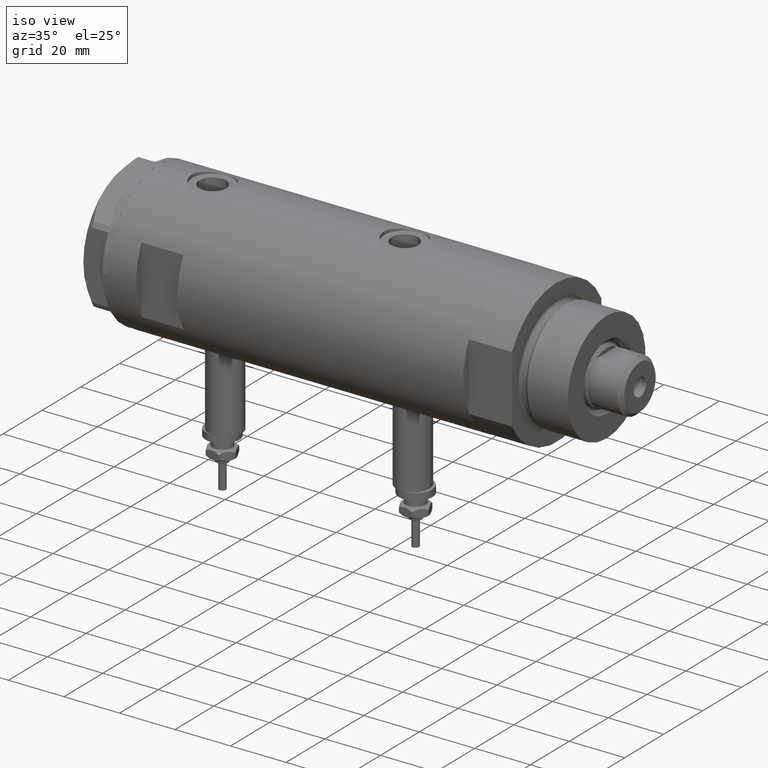
[diagram: clean part render]
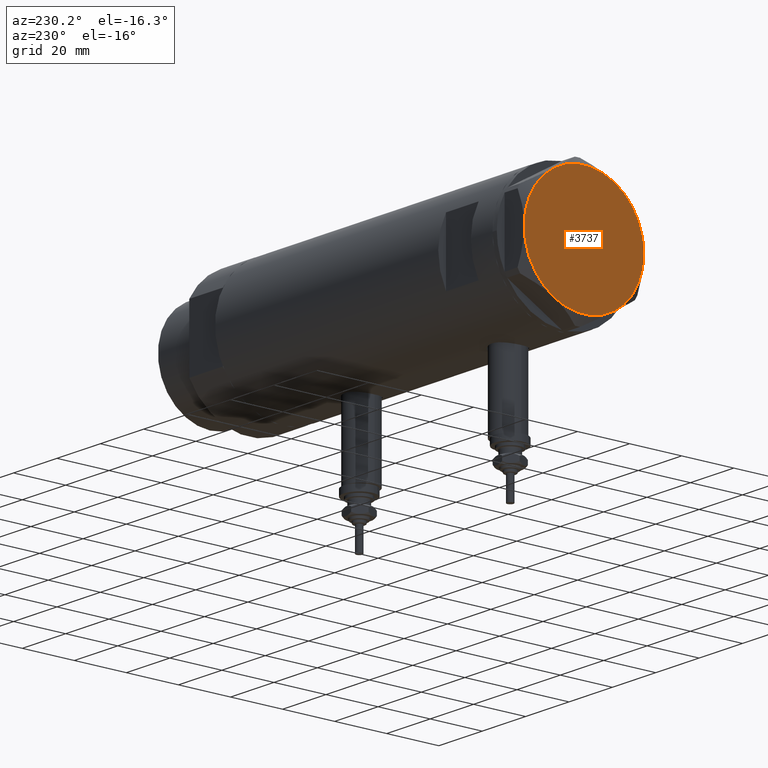
[diagram: tour spotlight — one face highlighted and labeled with its STEP entity id]
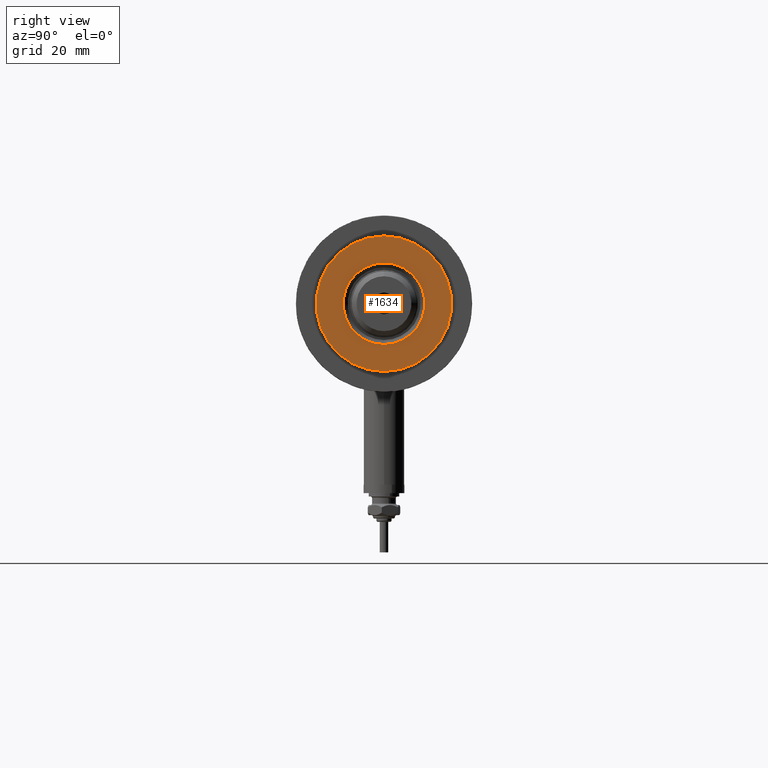
[diagram: tour spotlight — one face highlighted and labeled with its STEP entity id]
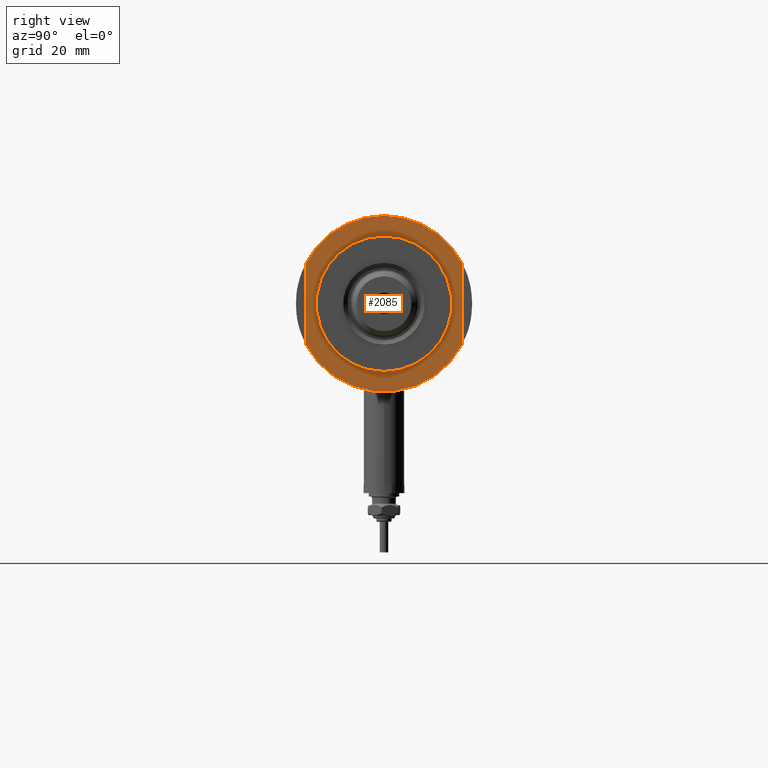
[diagram: tour spotlight — one face highlighted and labeled with its STEP entity id]
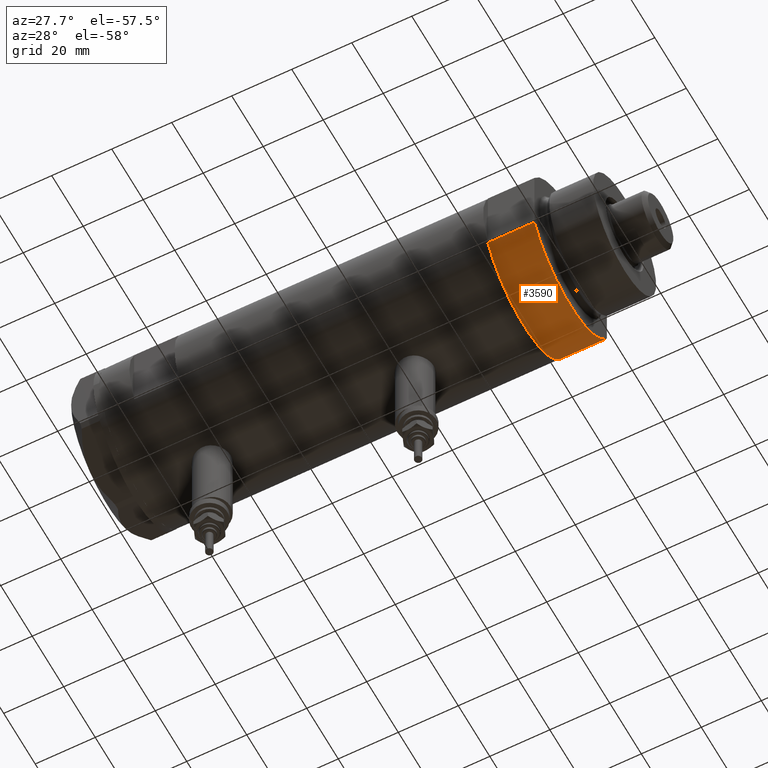
[diagram: tour spotlight — one face highlighted and labeled with its STEP entity id]
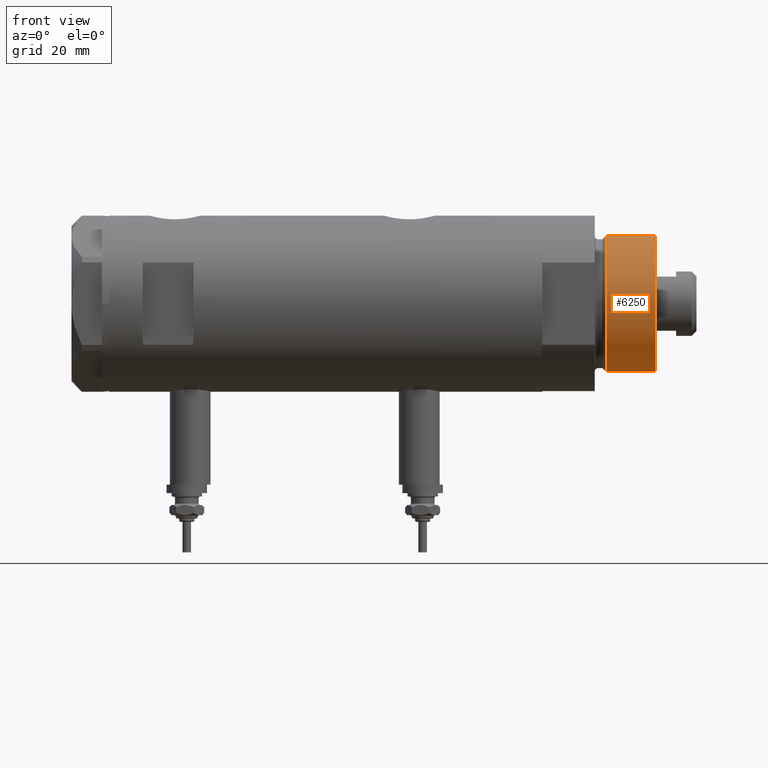
[diagram: tour spotlight — one face highlighted and labeled with its STEP entity id]
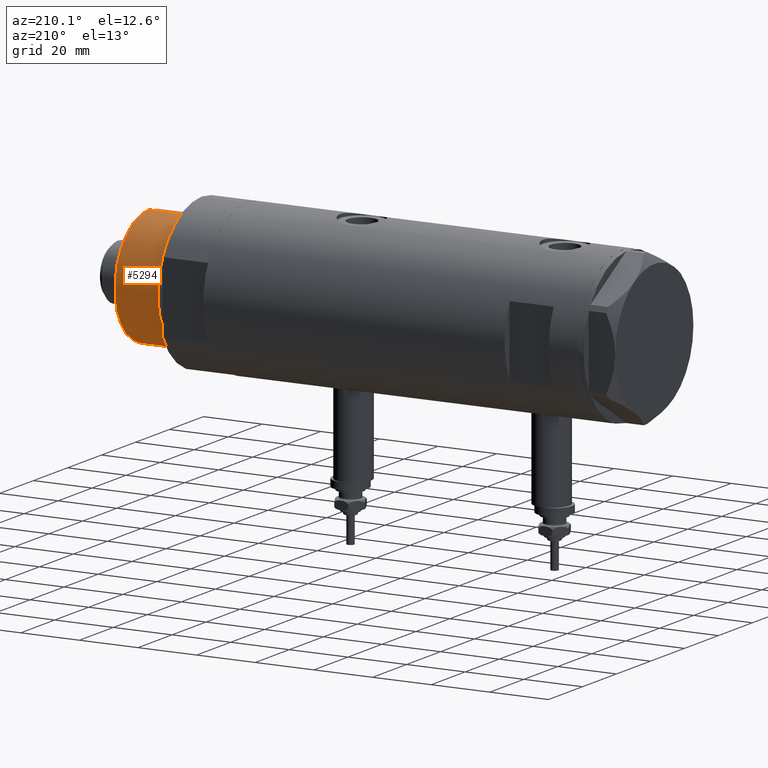
[diagram: tour spotlight — one face highlighted and labeled with its STEP entity id]
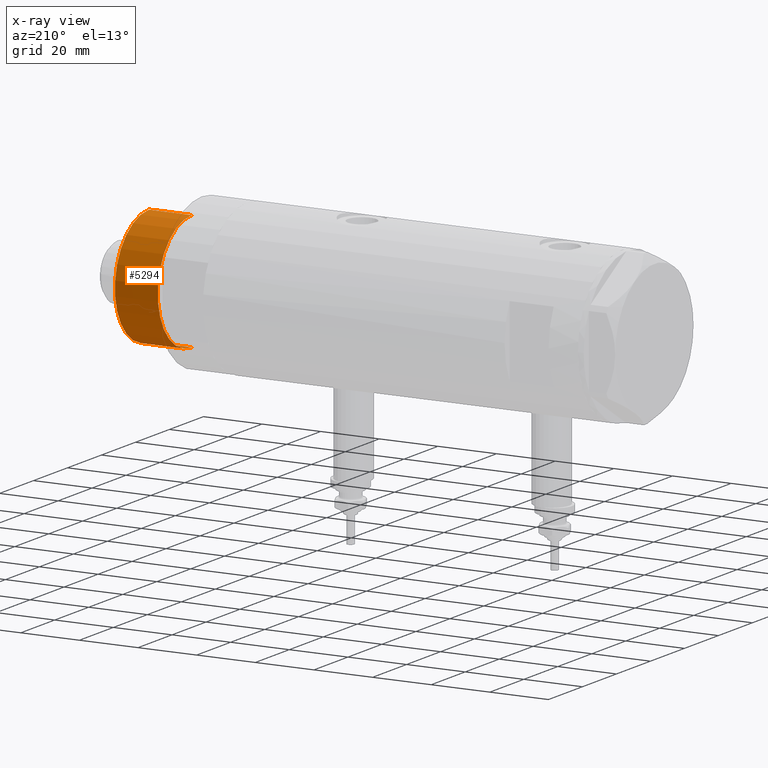
[diagram: x-ray of the same camera — body ghosted, this tour face saturated]
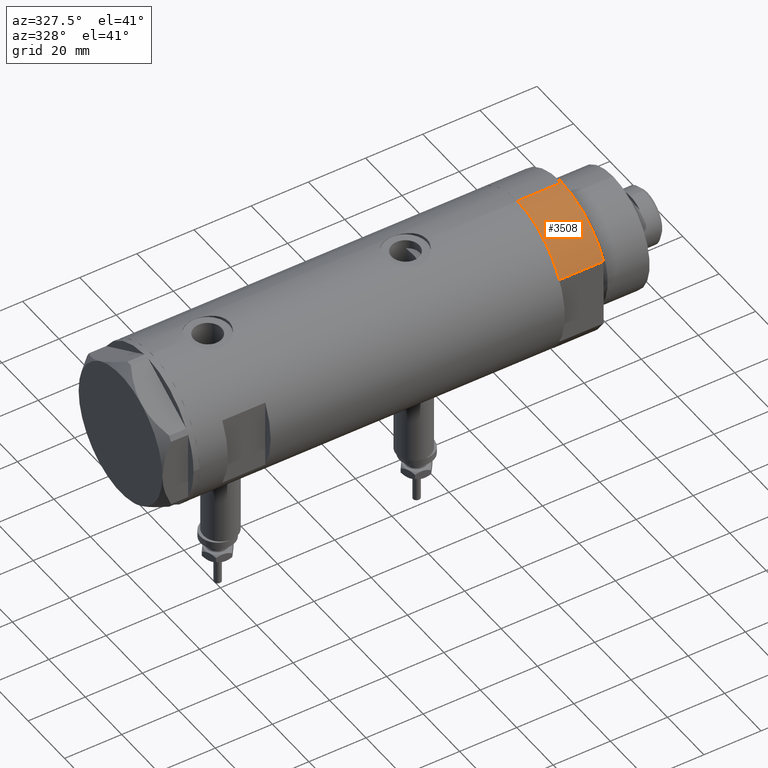
[diagram: tour spotlight — one face highlighted and labeled with its STEP entity id]
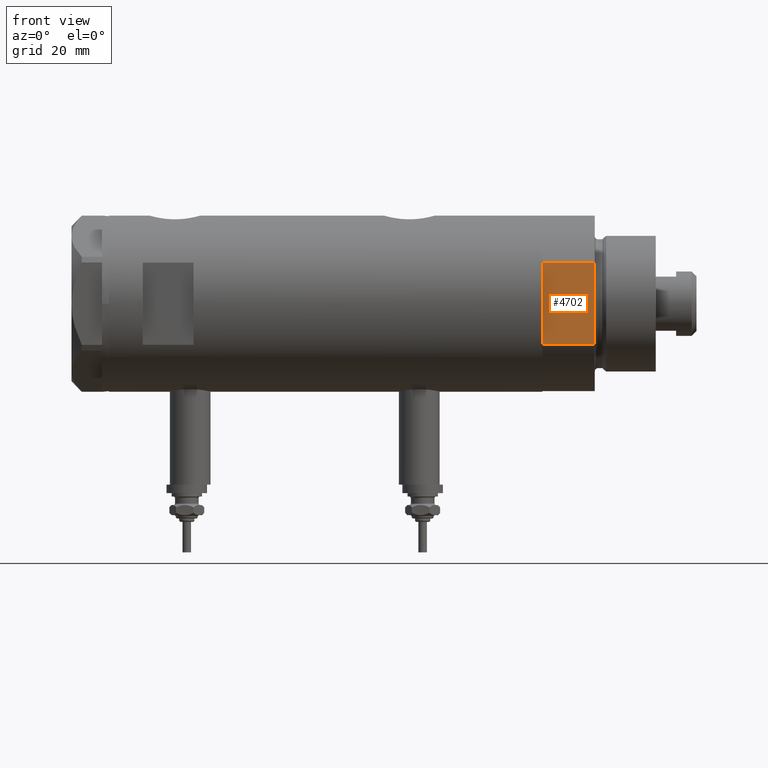
[diagram: tour spotlight — one face highlighted and labeled with its STEP entity id]
A machine part: a face-by-face anatomy tour. The part has 226 B-rep faces; the first image is the clean iso view, then the 8 largest visible faces are spotlighted one at a time (largest first), each with its STEP entity span.

Face 1 — auxiliary view, entity #3737. In plain terms, the highlighted planar face has unit normal (-1, -0, 0).
Definition (entity closure, byte-faithful):
#222 = CIRCLE ( 'NONE', #2054, 23.00000000000004619 ) ;
#390 = ORIENTED_EDGE ( 'NONE', *, *, #2309, .T. ) ;
#446 = EDGE_CURVE ( 'NONE', #5275, #2289, #4391, .T. ) ;
#603 = DIRECTION ( 'NONE',  ( 0.000000000000000000, 0.000000000000000000, 1.000000000000000000 ) ) ;
#783 = DIRECTION ( 'NONE',  ( 1.000000000000000000, 0.000000000000000000, -0.000000000000000000 ) ) ;
#932 = DIRECTION ( 'NONE',  ( 1.000000000000000000, 0.000000000000000000, 0.000000000000000000 ) ) ;
#1105 = VERTEX_POINT ( 'NONE', #1119 ) ;
#1119 = CARTESIAN_POINT ( 'NONE',  ( -11.50000000000004441, 19.91858428704211548, 9.000000000000000000 ) ) ;
#1132 = CIRCLE ( 'NONE', #5524, 23.00000000000004619 ) ;
#1203 = EDGE_LOOP ( 'NONE', ( #3985, #5233, #3791, #4630, #4785, #390 ) ) ;
#1246 = CARTESIAN_POINT ( 'NONE',  ( 22.99999999999995026, 2.373657066004705010E-13, 9.000000000000000000 ) ) ;
#1256 = FACE_OUTER_BOUND ( 'NONE', #1203, .T. ) ;
#1569 = CARTESIAN_POINT ( 'NONE',  ( -23.00000000000004619, -8.112498833180673323E-14, 9.000000000000000000 ) ) ;
#1622 = DIRECTION ( 'NONE',  ( 0.000000000000000000, 0.000000000000000000, 1.000000000000000000 ) ) ;
#1802 = PLANE ( 'NONE',  #5437 ) ;
#2054 = AXIS2_PLACEMENT_3D ( 'NONE', #5175, #5202, #4794 ) ;
#2077 = DIRECTION ( 'NONE',  ( 1.000000000000000000, 0.000000000000000000, 0.000000000000000000 ) ) ;
#2133 = DIRECTION ( 'NONE',  ( 1.000000000000000000, 0.000000000000000000, 0.000000000000000000 ) ) ;
#2157 = VERTEX_POINT ( 'NONE', #1569 ) ;
#2289 = VERTEX_POINT ( 'NONE', #1246 ) ;
#2309 = EDGE_CURVE ( 'NONE', #2931, #5275, #1132, .T. ) ;
#2340 = CARTESIAN_POINT ( 'NONE',  ( 0.000000000000000000, 0.000000000000000000, 9.000000000000000000 ) ) ;
#2500 = CIRCLE ( 'NONE', #6081, 23.00000000000004619 ) ;
#2762 = VERTEX_POINT ( 'NONE', #5245 ) ;
#2813 = DIRECTION ( 'NONE',  ( 1.000000000000000000, 0.000000000000000000, 0.000000000000000000 ) ) ;
#2843 = EDGE_CURVE ( 'NONE', #2762, #1105, #4420, .T. ) ;
#2849 = AXIS2_PLACEMENT_3D ( 'NONE', #4608, #1622, #2133 ) ;
#2928 = DIRECTION ( 'NONE',  ( 0.000000000000000000, 0.000000000000000000, 1.000000000000000000 ) ) ;
#2931 = VERTEX_POINT ( 'NONE', #2952 ) ;
#2952 = CARTESIAN_POINT ( 'NONE',  ( -11.49999999999990585, -19.91858428704219364, 9.000000000000000000 ) ) ;
#3213 = CARTESIAN_POINT ( 'NONE',  ( 0.000000000000000000, 0.000000000000000000, 9.000000000000000000 ) ) ;
#3215 = AXIS2_PLACEMENT_3D ( 'NONE', #6237, #2928, #2813 ) ;
#3286 = DIRECTION ( 'NONE',  ( 0.000000000000000000, 0.000000000000000000, 1.000000000000000000 ) ) ;
#3303 = EDGE_CURVE ( 'NONE', #1105, #2157, #222, .T. ) ;
#3698 = AXIS2_PLACEMENT_3D ( 'NONE', #5663, #3286, #5273 ) ;
#3737 = ADVANCED_FACE ( 'NONE', ( #1256 ), #1802, .T. ) ;
#3787 = DIRECTION ( 'NONE',  ( 0.000000000000000000, 0.000000000000000000, 1.000000000000000000 ) ) ;
#3791 = ORIENTED_EDGE ( 'NONE', *, *, #2843, .T. ) ;
#3820 = DIRECTION ( 'NONE',  ( 0.000000000000000000, 0.000000000000000000, 1.000000000000000000 ) ) ;
#3985 = ORIENTED_EDGE ( 'NONE', *, *, #446, .T. ) ;
#4391 = CIRCLE ( 'NONE', #2849, 23.00000000000004619 ) ;
#4420 = CIRCLE ( 'NONE', #3698, 23.00000000000004619 ) ;
#4608 = CARTESIAN_POINT ( 'NONE',  ( 0.000000000000000000, 0.000000000000000000, 9.000000000000000000 ) ) ;
#4630 = ORIENTED_EDGE ( 'NONE', *, *, #3303, .T. ) ;
#4785 = ORIENTED_EDGE ( 'NONE', *, *, #5811, .T. ) ;
#4794 = DIRECTION ( 'NONE',  ( 1.000000000000000000, 0.000000000000000000, 0.000000000000000000 ) ) ;
#5014 = CARTESIAN_POINT ( 'NONE',  ( 11.50000000000018296, -19.91858428704203732, 9.000000000000000000 ) ) ;
#5175 = CARTESIAN_POINT ( 'NONE',  ( 0.000000000000000000, 0.000000000000000000, 9.000000000000000000 ) ) ;
#5202 = DIRECTION ( 'NONE',  ( 0.000000000000000000, 0.000000000000000000, 1.000000000000000000 ) ) ;
#5233 = ORIENTED_EDGE ( 'NONE', *, *, #6239, .T. ) ;
#5245 = CARTESIAN_POINT ( 'NONE',  ( 11.49999999999990408, 19.91858428704219364, 9.000000000000000000 ) ) ;
#5273 = DIRECTION ( 'NONE',  ( 1.000000000000000000, 0.000000000000000000, 0.000000000000000000 ) ) ;
#5275 = VERTEX_POINT ( 'NONE', #5014 ) ;
#5437 = AXIS2_PLACEMENT_3D ( 'NONE', #3213, #3787, #783 ) ;
#5524 = AXIS2_PLACEMENT_3D ( 'NONE', #6053, #603, #2077 ) ;
#5663 = CARTESIAN_POINT ( 'NONE',  ( 0.000000000000000000, 0.000000000000000000, 9.000000000000000000 ) ) ;
#5811 = EDGE_CURVE ( 'NONE', #2157, #2931, #2500, .T. ) ;
#5979 = CIRCLE ( 'NONE', #3215, 23.00000000000004619 ) ;
#6053 = CARTESIAN_POINT ( 'NONE',  ( 0.000000000000000000, 0.000000000000000000, 9.000000000000000000 ) ) ;
#6081 = AXIS2_PLACEMENT_3D ( 'NONE', #2340, #3820, #932 ) ;
#6237 = CARTESIAN_POINT ( 'NONE',  ( 0.000000000000000000, 0.000000000000000000, 9.000000000000000000 ) ) ;
#6239 = EDGE_CURVE ( 'NONE', #2289, #2762, #5979, .T. ) ;

Face 2 — right view, entity #1634. In plain terms, the highlighted planar face has unit normal (1, 0, -0).
Definition (entity closure, byte-faithful):
#196 = CARTESIAN_POINT ( 'NONE',  ( 0.000000000000000000, 0.000000000000000000, 33.50000000000000000 ) ) ;
#232 = AXIS2_PLACEMENT_3D ( 'NONE', #3947, #4905, #1416 ) ;
#305 = EDGE_CURVE ( 'NONE', #5201, #4993, #1842, .T. ) ;
#357 = CARTESIAN_POINT ( 'NONE',  ( 0.000000000000000000, 0.000000000000000000, 33.50000000000000000 ) ) ;
#539 = DIRECTION ( 'NONE',  ( 0.000000000000000000, 0.000000000000000000, 1.000000000000000000 ) ) ;
#754 = EDGE_CURVE ( 'NONE', #4993, #5201, #5306, .T. ) ;
#1001 = DIRECTION ( 'NONE',  ( 1.000000000000000000, 0.000000000000000000, 0.000000000000000000 ) ) ;
#1116 = AXIS2_PLACEMENT_3D ( 'NONE', #196, #5582, #3986 ) ;
#1378 = VERTEX_POINT ( 'NONE', #3453 ) ;
#1416 = DIRECTION ( 'NONE',  ( 1.000000000000000000, 0.000000000000000000, 0.000000000000000000 ) ) ;
#1474 = FACE_OUTER_BOUND ( 'NONE', #3219, .T. ) ;
#1479 = ORIENTED_EDGE ( 'NONE', *, *, #3858, .T. ) ;
#1526 = CARTESIAN_POINT ( 'NONE',  ( 19.99999999999999645, 2.449293598294706119E-15, 33.50000000000000000 ) ) ;
#1634 = ADVANCED_FACE ( 'NONE', ( #2904, #1474 ), #3419, .T. ) ;
#1842 = CIRCLE ( 'NONE', #2354, 19.99999999999999645 ) ;
#1860 = CIRCLE ( 'NONE', #5751, 12.05000000000000426 ) ;
#1992 = CARTESIAN_POINT ( 'NONE',  ( 0.000000000000000000, 0.000000000000000000, 33.50000000000000000 ) ) ;
#2147 = AXIS2_PLACEMENT_3D ( 'NONE', #357, #539, #4546 ) ;
#2354 = AXIS2_PLACEMENT_3D ( 'NONE', #5665, #2776, #2677 ) ;
#2677 = DIRECTION ( 'NONE',  ( 1.000000000000000000, 0.000000000000000000, 0.000000000000000000 ) ) ;
#2722 = ORIENTED_EDGE ( 'NONE', *, *, #754, .T. ) ;
#2776 = DIRECTION ( 'NONE',  ( 0.000000000000000000, 0.000000000000000000, 1.000000000000000000 ) ) ;
#2836 = ORIENTED_EDGE ( 'NONE', *, *, #3414, .T. ) ;
#2882 = CIRCLE ( 'NONE', #232, 12.05000000000000426 ) ;
#2904 = FACE_BOUND ( 'NONE', #5928, .T. ) ;
#3219 = EDGE_LOOP ( 'NONE', ( #2722, #4550 ) ) ;
#3232 = CARTESIAN_POINT ( 'NONE',  ( -19.99999999999999645, 0.000000000000000000, 33.50000000000000000 ) ) ;
#3414 = EDGE_CURVE ( 'NONE', #1378, #3464, #1860, .T. ) ;
#3419 = PLANE ( 'NONE',  #2147 ) ;
#3453 = CARTESIAN_POINT ( 'NONE',  ( -12.05000000000000426, 1.475699392972560823E-15, 33.50000000000000000 ) ) ;
#3464 = VERTEX_POINT ( 'NONE', #5931 ) ;
#3858 = EDGE_CURVE ( 'NONE', #3464, #1378, #2882, .T. ) ;
#3947 = CARTESIAN_POINT ( 'NONE',  ( 0.000000000000000000, 0.000000000000000000, 33.50000000000000000 ) ) ;
#3986 = DIRECTION ( 'NONE',  ( 1.000000000000000000, 0.000000000000000000, 0.000000000000000000 ) ) ;
#4546 = DIRECTION ( 'NONE',  ( 1.000000000000000000, 0.000000000000000000, -0.000000000000000000 ) ) ;
#4550 = ORIENTED_EDGE ( 'NONE', *, *, #305, .T. ) ;
#4905 = DIRECTION ( 'NONE',  ( -0.000000000000000000, -0.000000000000000000, -1.000000000000000000 ) ) ;
#4993 = VERTEX_POINT ( 'NONE', #3232 ) ;
#5201 = VERTEX_POINT ( 'NONE', #1526 ) ;
#5306 = CIRCLE ( 'NONE', #1116, 19.99999999999999645 ) ;
#5382 = DIRECTION ( 'NONE',  ( -0.000000000000000000, -0.000000000000000000, -1.000000000000000000 ) ) ;
#5582 = DIRECTION ( 'NONE',  ( 0.000000000000000000, 0.000000000000000000, 1.000000000000000000 ) ) ;
#5665 = CARTESIAN_POINT ( 'NONE',  ( 0.000000000000000000, 0.000000000000000000, 33.50000000000000000 ) ) ;
#5751 = AXIS2_PLACEMENT_3D ( 'NONE', #1992, #5382, #1001 ) ;
#5928 = EDGE_LOOP ( 'NONE', ( #1479, #2836 ) ) ;
#5931 = CARTESIAN_POINT ( 'NONE',  ( 12.05000000000000426, 0.000000000000000000, 33.50000000000000000 ) ) ;

Face 3 — right view, entity #2085. In plain terms, the highlighted planar face has unit normal (1, 0, -0).
Definition (entity closure, byte-faithful):
#73 = CARTESIAN_POINT ( 'NONE',  ( 0.000000000000000000, 0.000000000000000000, 15.50000000000000000 ) ) ;
#83 = LINE ( 'NONE', #1141, #5347 ) ;
#114 = DIRECTION ( 'NONE',  ( 0.000000000000000000, 0.000000000000000000, 1.000000000000000000 ) ) ;
#186 = ORIENTED_EDGE ( 'NONE', *, *, #4380, .T. ) ;
#404 = EDGE_CURVE ( 'NONE', #1064, #2700, #708, .T. ) ;
#467 = DIRECTION ( 'NONE',  ( 1.000000000000000000, 0.000000000000000000, 0.000000000000000000 ) ) ;
#479 = VERTEX_POINT ( 'NONE', #2673 ) ;
#547 = AXIS2_PLACEMENT_3D ( 'NONE', #73, #2889, #467 ) ;
#688 = FACE_BOUND ( 'NONE', #2986, .T. ) ;
#708 = CIRCLE ( 'NONE', #1628, 20.00000000000000000 ) ;
#866 = CARTESIAN_POINT ( 'NONE',  ( -12.12435565298214613, 23.00000000000000355, 15.50000000000000000 ) ) ;
#936 = DIRECTION ( 'NONE',  ( 1.000000000000000000, 0.000000000000000000, 0.000000000000000000 ) ) ;
#1064 = VERTEX_POINT ( 'NONE', #2911 ) ;
#1141 = CARTESIAN_POINT ( 'NONE',  ( -12.12435565298215145, -22.99999999999999645, 15.50000000000000000 ) ) ;
#1178 = CARTESIAN_POINT ( 'NONE',  ( 12.12435565298214790, 23.00000000000000355, 15.50000000000000000 ) ) ;
#1201 = DIRECTION ( 'NONE',  ( 0.000000000000000000, 0.000000000000000000, 1.000000000000000000 ) ) ;
#1505 = EDGE_CURVE ( 'NONE', #2700, #1064, #2957, .T. ) ;
#1559 = DIRECTION ( 'NONE',  ( 1.000000000000000000, 0.000000000000000000, 0.000000000000000000 ) ) ;
#1605 = EDGE_LOOP ( 'NONE', ( #4900, #6195, #2024, #2905, #186 ) ) ;
#1628 = AXIS2_PLACEMENT_3D ( 'NONE', #1652, #2200, #3610 ) ;
#1652 = CARTESIAN_POINT ( 'NONE',  ( 0.000000000000000000, 0.000000000000000000, 15.50000000000000000 ) ) ;
#1755 = EDGE_CURVE ( 'NONE', #6216, #479, #6242, .T. ) ;
#1824 = CARTESIAN_POINT ( 'NONE',  ( 0.000000000000000000, 0.000000000000000000, 15.50000000000000000 ) ) ;
#1977 = DIRECTION ( 'NONE',  ( 1.000000000000000000, 0.000000000000000000, 0.000000000000000000 ) ) ;
#2024 = ORIENTED_EDGE ( 'NONE', *, *, #3890, .F. ) ;
#2031 = DIRECTION ( 'NONE',  ( -1.000000000000000000, -0.000000000000000000, -0.000000000000000000 ) ) ;
#2085 = ADVANCED_FACE ( 'NONE', ( #688, #4599 ), #3637, .T. ) ;
#2200 = DIRECTION ( 'NONE',  ( -0.000000000000000000, -0.000000000000000000, -1.000000000000000000 ) ) ;
#2283 = CIRCLE ( 'NONE', #5556, 26.00000000000000355 ) ;
#2673 = CARTESIAN_POINT ( 'NONE',  ( -26.00000000000000355, 0.000000000000000000, 15.50000000000000000 ) ) ;
#2675 = CARTESIAN_POINT ( 'NONE',  ( 20.00000000000000000, 0.000000000000000000, 15.50000000000000000 ) ) ;
#2700 = VERTEX_POINT ( 'NONE', #2675 ) ;
#2889 = DIRECTION ( 'NONE',  ( 0.000000000000000000, 0.000000000000000000, 1.000000000000000000 ) ) ;
#2905 = ORIENTED_EDGE ( 'NONE', *, *, #1755, .T. ) ;
#2911 = CARTESIAN_POINT ( 'NONE',  ( -20.00000000000000000, 2.449293598294706513E-15, 15.50000000000000000 ) ) ;
#2957 = CIRCLE ( 'NONE', #4202, 20.00000000000000000 ) ;
#2986 = EDGE_LOOP ( 'NONE', ( #3287, #5619 ) ) ;
#3147 = DIRECTION ( 'NONE',  ( 1.000000000000000000, 0.000000000000000000, -0.000000000000000000 ) ) ;
#3287 = ORIENTED_EDGE ( 'NONE', *, *, #1505, .T. ) ;
#3327 = DIRECTION ( 'NONE',  ( 1.000000000000000000, 0.000000000000000000, 0.000000000000000000 ) ) ;
#3610 = DIRECTION ( 'NONE',  ( 1.000000000000000000, 0.000000000000000000, 0.000000000000000000 ) ) ;
#3637 = PLANE ( 'NONE',  #5225 ) ;
#3890 = EDGE_CURVE ( 'NONE', #6216, #5314, #5407, .T. ) ;
#4179 = VERTEX_POINT ( 'NONE', #4461 ) ;
#4202 = AXIS2_PLACEMENT_3D ( 'NONE', #1824, #5766, #3327 ) ;
#4300 = AXIS2_PLACEMENT_3D ( 'NONE', #5468, #4988, #1977 ) ;
#4380 = EDGE_CURVE ( 'NONE', #479, #6162, #2283, .T. ) ;
#4461 = CARTESIAN_POINT ( 'NONE',  ( 12.12435565298215323, -22.99999999999999645, 15.50000000000000000 ) ) ;
#4599 = FACE_OUTER_BOUND ( 'NONE', #1605, .T. ) ;
#4833 = EDGE_CURVE ( 'NONE', #4179, #5314, #5342, .T. ) ;
#4900 = ORIENTED_EDGE ( 'NONE', *, *, #5259, .F. ) ;
#4988 = DIRECTION ( 'NONE',  ( 0.000000000000000000, 0.000000000000000000, 1.000000000000000000 ) ) ;
#5225 = AXIS2_PLACEMENT_3D ( 'NONE', #5588, #1201, #3147 ) ;
#5259 = EDGE_CURVE ( 'NONE', #4179, #6162, #83, .T. ) ;
#5314 = VERTEX_POINT ( 'NONE', #1178 ) ;
#5342 = CIRCLE ( 'NONE', #547, 26.00000000000000355 ) ;
#5347 = VECTOR ( 'NONE', #2031, 1000.000000000000000 ) ;
#5407 = LINE ( 'NONE', #5803, #5759 ) ;
#5468 = CARTESIAN_POINT ( 'NONE',  ( 0.000000000000000000, 0.000000000000000000, 15.50000000000000000 ) ) ;
#5556 = AXIS2_PLACEMENT_3D ( 'NONE', #5799, #114, #1559 ) ;
#5588 = CARTESIAN_POINT ( 'NONE',  ( 0.000000000000000000, 0.000000000000000000, 15.50000000000000000 ) ) ;
#5619 = ORIENTED_EDGE ( 'NONE', *, *, #404, .T. ) ;
#5671 = CARTESIAN_POINT ( 'NONE',  ( -12.12435565298215323, -22.99999999999999645, 15.50000000000000000 ) ) ;
#5759 = VECTOR ( 'NONE', #936, 1000.000000000000000 ) ;
#5766 = DIRECTION ( 'NONE',  ( -0.000000000000000000, -0.000000000000000000, -1.000000000000000000 ) ) ;
#5799 = CARTESIAN_POINT ( 'NONE',  ( 0.000000000000000000, 0.000000000000000000, 15.50000000000000000 ) ) ;
#5803 = CARTESIAN_POINT ( 'NONE',  ( -12.12435565298215145, 23.00000000000000355, 15.50000000000000000 ) ) ;
#6162 = VERTEX_POINT ( 'NONE', #5671 ) ;
#6195 = ORIENTED_EDGE ( 'NONE', *, *, #4833, .T. ) ;
#6216 = VERTEX_POINT ( 'NONE', #866 ) ;
#6242 = CIRCLE ( 'NONE', #4300, 26.00000000000000355 ) ;

Face 4 — auxiliary view, entity #3590. In plain terms, the highlighted cylindrical surface (partial cylindrical patch) has radius 26 mm, axis along (-1, -0, 0).
Definition (entity closure, byte-faithful):
#73 = CARTESIAN_POINT ( 'NONE',  ( 0.000000000000000000, 0.000000000000000000, 15.50000000000000000 ) ) ;
#415 = VERTEX_POINT ( 'NONE', #5112 ) ;
#467 = DIRECTION ( 'NONE',  ( 1.000000000000000000, 0.000000000000000000, 0.000000000000000000 ) ) ;
#547 = AXIS2_PLACEMENT_3D ( 'NONE', #73, #2889, #467 ) ;
#626 = ORIENTED_EDGE ( 'NONE', *, *, #3633, .T. ) ;
#636 = AXIS2_PLACEMENT_3D ( 'NONE', #2696, #5745, #3658 ) ;
#703 = CARTESIAN_POINT ( 'NONE',  ( 12.12435565298215323, -22.99999999999999645, 0.000000000000000000 ) ) ;
#921 = CARTESIAN_POINT ( 'NONE',  ( 0.000000000000000000, 0.000000000000000000, 0.000000000000000000 ) ) ;
#1178 = CARTESIAN_POINT ( 'NONE',  ( 12.12435565298214790, 23.00000000000000355, 15.50000000000000000 ) ) ;
#1311 = DIRECTION ( 'NONE',  ( 1.000000000000000000, 0.000000000000000000, 0.000000000000000000 ) ) ;
#1366 = EDGE_CURVE ( 'NONE', #2359, #4179, #4555, .T. ) ;
#1420 = CARTESIAN_POINT ( 'NONE',  ( 12.12435565298215323, -22.99999999999999645, 0.000000000000000000 ) ) ;
#1690 = ORIENTED_EDGE ( 'NONE', *, *, #5099, .T. ) ;
#2076 = CIRCLE ( 'NONE', #4131, 26.00000000000000355 ) ;
#2249 = FACE_OUTER_BOUND ( 'NONE', #3044, .T. ) ;
#2359 = VERTEX_POINT ( 'NONE', #703 ) ;
#2696 = CARTESIAN_POINT ( 'NONE',  ( 0.000000000000000000, 0.000000000000000000, 15.50000000000000000 ) ) ;
#2727 = LINE ( 'NONE', #6124, #5953 ) ;
#2889 = DIRECTION ( 'NONE',  ( 0.000000000000000000, 0.000000000000000000, 1.000000000000000000 ) ) ;
#3044 = EDGE_LOOP ( 'NONE', ( #6267, #4823, #1690, #626 ) ) ;
#3590 = ADVANCED_FACE ( 'NONE', ( #2249 ), #5133, .T. ) ;
#3633 = EDGE_CURVE ( 'NONE', #415, #5314, #2727, .T. ) ;
#3658 = DIRECTION ( 'NONE',  ( -1.000000000000000000, 0.000000000000000000, 0.000000000000000000 ) ) ;
#4131 = AXIS2_PLACEMENT_3D ( 'NONE', #921, #4835, #1311 ) ;
#4179 = VERTEX_POINT ( 'NONE', #4461 ) ;
#4461 = CARTESIAN_POINT ( 'NONE',  ( 12.12435565298215323, -22.99999999999999645, 15.50000000000000000 ) ) ;
#4555 = LINE ( 'NONE', #1420, #5413 ) ;
#4823 = ORIENTED_EDGE ( 'NONE', *, *, #1366, .F. ) ;
#4833 = EDGE_CURVE ( 'NONE', #4179, #5314, #5342, .T. ) ;
#4835 = DIRECTION ( 'NONE',  ( 0.000000000000000000, 0.000000000000000000, 1.000000000000000000 ) ) ;
#5099 = EDGE_CURVE ( 'NONE', #2359, #415, #2076, .T. ) ;
#5112 = CARTESIAN_POINT ( 'NONE',  ( 12.12435565298214080, 23.00000000000000355, 0.000000000000000000 ) ) ;
#5133 = CYLINDRICAL_SURFACE ( 'NONE', #636, 26.00000000000000355 ) ;
#5314 = VERTEX_POINT ( 'NONE', #1178 ) ;
#5342 = CIRCLE ( 'NONE', #547, 26.00000000000000355 ) ;
#5413 = VECTOR ( 'NONE', #5835, 1000.000000000000000 ) ;
#5745 = DIRECTION ( 'NONE',  ( -0.000000000000000000, -0.000000000000000000, -1.000000000000000000 ) ) ;
#5835 = DIRECTION ( 'NONE',  ( -0.000000000000000000, -0.000000000000000000, 1.000000000000000000 ) ) ;
#5953 = VECTOR ( 'NONE', #6096, 1000.000000000000000 ) ;
#6096 = DIRECTION ( 'NONE',  ( -0.000000000000000000, -0.000000000000000000, 1.000000000000000000 ) ) ;
#6124 = CARTESIAN_POINT ( 'NONE',  ( 12.12435565298215323, 23.00000000000000355, 0.000000000000000000 ) ) ;
#6267 = ORIENTED_EDGE ( 'NONE', *, *, #4833, .F. ) ;

Face 5 — front view, entity #6250. In plain terms, the highlighted cylindrical surface (partial cylindrical patch) has radius 20 mm, axis along (-1, -0, 0).
Definition (entity closure, byte-faithful):
#76 = VERTEX_POINT ( 'NONE', #1095 ) ;
#196 = CARTESIAN_POINT ( 'NONE',  ( 0.000000000000000000, 0.000000000000000000, 33.50000000000000000 ) ) ;
#353 = EDGE_CURVE ( 'NONE', #4037, #76, #2861, .T. ) ;
#366 = EDGE_CURVE ( 'NONE', #5201, #76, #4986, .T. ) ;
#699 = DIRECTION ( 'NONE',  ( -0.000000000000000000, -0.000000000000000000, 1.000000000000000000 ) ) ;
#754 = EDGE_CURVE ( 'NONE', #4993, #5201, #5306, .T. ) ;
#805 = ORIENTED_EDGE ( 'NONE', *, *, #754, .F. ) ;
#927 = AXIS2_PLACEMENT_3D ( 'NONE', #5085, #699, #4089 ) ;
#965 = CARTESIAN_POINT ( 'NONE',  ( -19.99999999999999645, 0.000000000000000000, 33.50000000000000000 ) ) ;
#1095 = CARTESIAN_POINT ( 'NONE',  ( 19.99999999999999645, 2.449293598294706119E-15, 18.87384048104053846 ) ) ;
#1116 = AXIS2_PLACEMENT_3D ( 'NONE', #196, #5582, #3986 ) ;
#1526 = CARTESIAN_POINT ( 'NONE',  ( 19.99999999999999645, 2.449293598294706119E-15, 33.50000000000000000 ) ) ;
#1610 = ORIENTED_EDGE ( 'NONE', *, *, #366, .F. ) ;
#1850 = FACE_OUTER_BOUND ( 'NONE', #2045, .T. ) ;
#1858 = DIRECTION ( 'NONE',  ( -0.000000000000000000, -0.000000000000000000, -1.000000000000000000 ) ) ;
#2016 = CARTESIAN_POINT ( 'NONE',  ( -19.99999999999999645, 0.000000000000000000, 18.87384048104053846 ) ) ;
#2045 = EDGE_LOOP ( 'NONE', ( #1610, #805, #2608, #2883 ) ) ;
#2086 = VECTOR ( 'NONE', #1858, 1000.000000000000000 ) ;
#2608 = ORIENTED_EDGE ( 'NONE', *, *, #5918, .T. ) ;
#2861 = CIRCLE ( 'NONE', #927, 19.99999999999999645 ) ;
#2883 = ORIENTED_EDGE ( 'NONE', *, *, #353, .T. ) ;
#3232 = CARTESIAN_POINT ( 'NONE',  ( -19.99999999999999645, 0.000000000000000000, 33.50000000000000000 ) ) ;
#3844 = CYLINDRICAL_SURFACE ( 'NONE', #6286, 19.99999999999999645 ) ;
#3903 = DIRECTION ( 'NONE',  ( -0.000000000000000000, -0.000000000000000000, -1.000000000000000000 ) ) ;
#3986 = DIRECTION ( 'NONE',  ( 1.000000000000000000, 0.000000000000000000, 0.000000000000000000 ) ) ;
#4037 = VERTEX_POINT ( 'NONE', #2016 ) ;
#4089 = DIRECTION ( 'NONE',  ( 1.000000000000000000, 0.000000000000000000, 0.000000000000000000 ) ) ;
#4509 = VECTOR ( 'NONE', #4642, 1000.000000000000000 ) ;
#4642 = DIRECTION ( 'NONE',  ( -0.000000000000000000, -0.000000000000000000, -1.000000000000000000 ) ) ;
#4986 = LINE ( 'NONE', #5526, #4509 ) ;
#4993 = VERTEX_POINT ( 'NONE', #3232 ) ;
#5085 = CARTESIAN_POINT ( 'NONE',  ( 0.000000000000000000, 0.000000000000000000, 18.87384048104053846 ) ) ;
#5201 = VERTEX_POINT ( 'NONE', #1526 ) ;
#5277 = CARTESIAN_POINT ( 'NONE',  ( 0.000000000000000000, 0.000000000000000000, 33.50000000000000000 ) ) ;
#5306 = CIRCLE ( 'NONE', #1116, 19.99999999999999645 ) ;
#5341 = LINE ( 'NONE', #965, #2086 ) ;
#5526 = CARTESIAN_POINT ( 'NONE',  ( 19.99999999999999645, 2.449293598294706119E-15, 33.50000000000000000 ) ) ;
#5582 = DIRECTION ( 'NONE',  ( 0.000000000000000000, 0.000000000000000000, 1.000000000000000000 ) ) ;
#5794 = DIRECTION ( 'NONE',  ( -1.000000000000000000, 0.000000000000000000, 0.000000000000000000 ) ) ;
#5918 = EDGE_CURVE ( 'NONE', #4993, #4037, #5341, .T. ) ;
#6250 = ADVANCED_FACE ( 'NONE', ( #1850 ), #3844, .T. ) ;
#6286 = AXIS2_PLACEMENT_3D ( 'NONE', #5277, #3903, #5794 ) ;

Face 6 — auxiliary view, entity #5294. An x-ray twin of the same camera follows (body ghosted, this face saturated) — the face is partly hidden behind the body. In plain terms, the highlighted cylindrical surface (partial cylindrical patch) has radius 20 mm, axis along (-1, -0, 0).
Definition (entity closure, byte-faithful):
#76 = VERTEX_POINT ( 'NONE', #1095 ) ;
#305 = EDGE_CURVE ( 'NONE', #5201, #4993, #1842, .T. ) ;
#366 = EDGE_CURVE ( 'NONE', #5201, #76, #4986, .T. ) ;
#965 = CARTESIAN_POINT ( 'NONE',  ( -19.99999999999999645, 0.000000000000000000, 33.50000000000000000 ) ) ;
#1095 = CARTESIAN_POINT ( 'NONE',  ( 19.99999999999999645, 2.449293598294706119E-15, 18.87384048104053846 ) ) ;
#1111 = DIRECTION ( 'NONE',  ( -0.000000000000000000, -0.000000000000000000, 1.000000000000000000 ) ) ;
#1526 = CARTESIAN_POINT ( 'NONE',  ( 19.99999999999999645, 2.449293598294706119E-15, 33.50000000000000000 ) ) ;
#1736 = EDGE_CURVE ( 'NONE', #76, #4037, #5633, .T. ) ;
#1841 = AXIS2_PLACEMENT_3D ( 'NONE', #2522, #1111, #3510 ) ;
#1842 = CIRCLE ( 'NONE', #2354, 19.99999999999999645 ) ;
#1858 = DIRECTION ( 'NONE',  ( -0.000000000000000000, -0.000000000000000000, -1.000000000000000000 ) ) ;
#1873 = AXIS2_PLACEMENT_3D ( 'NONE', #4413, #2197, #2260 ) ;
#1910 = ORIENTED_EDGE ( 'NONE', *, *, #1736, .T. ) ;
#2016 = CARTESIAN_POINT ( 'NONE',  ( -19.99999999999999645, 0.000000000000000000, 18.87384048104053846 ) ) ;
#2086 = VECTOR ( 'NONE', #1858, 1000.000000000000000 ) ;
#2197 = DIRECTION ( 'NONE',  ( -0.000000000000000000, -0.000000000000000000, -1.000000000000000000 ) ) ;
#2260 = DIRECTION ( 'NONE',  ( -1.000000000000000000, 0.000000000000000000, 0.000000000000000000 ) ) ;
#2354 = AXIS2_PLACEMENT_3D ( 'NONE', #5665, #2776, #2677 ) ;
#2457 = CYLINDRICAL_SURFACE ( 'NONE', #1873, 19.99999999999999645 ) ;
#2498 = EDGE_LOOP ( 'NONE', ( #3719, #3501, #1910, #4893 ) ) ;
#2522 = CARTESIAN_POINT ( 'NONE',  ( 0.000000000000000000, 0.000000000000000000, 18.87384048104053846 ) ) ;
#2677 = DIRECTION ( 'NONE',  ( 1.000000000000000000, 0.000000000000000000, 0.000000000000000000 ) ) ;
#2776 = DIRECTION ( 'NONE',  ( 0.000000000000000000, 0.000000000000000000, 1.000000000000000000 ) ) ;
#3232 = CARTESIAN_POINT ( 'NONE',  ( -19.99999999999999645, 0.000000000000000000, 33.50000000000000000 ) ) ;
#3501 = ORIENTED_EDGE ( 'NONE', *, *, #366, .T. ) ;
#3510 = DIRECTION ( 'NONE',  ( 1.000000000000000000, 0.000000000000000000, 0.000000000000000000 ) ) ;
#3719 = ORIENTED_EDGE ( 'NONE', *, *, #305, .F. ) ;
#4037 = VERTEX_POINT ( 'NONE', #2016 ) ;
#4060 = FACE_OUTER_BOUND ( 'NONE', #2498, .T. ) ;
#4413 = CARTESIAN_POINT ( 'NONE',  ( 0.000000000000000000, 0.000000000000000000, 33.50000000000000000 ) ) ;
#4509 = VECTOR ( 'NONE', #4642, 1000.000000000000000 ) ;
#4642 = DIRECTION ( 'NONE',  ( -0.000000000000000000, -0.000000000000000000, -1.000000000000000000 ) ) ;
#4893 = ORIENTED_EDGE ( 'NONE', *, *, #5918, .F. ) ;
#4986 = LINE ( 'NONE', #5526, #4509 ) ;
#4993 = VERTEX_POINT ( 'NONE', #3232 ) ;
#5201 = VERTEX_POINT ( 'NONE', #1526 ) ;
#5294 = ADVANCED_FACE ( 'NONE', ( #4060 ), #2457, .T. ) ;
#5341 = LINE ( 'NONE', #965, #2086 ) ;
#5526 = CARTESIAN_POINT ( 'NONE',  ( 19.99999999999999645, 2.449293598294706119E-15, 33.50000000000000000 ) ) ;
#5633 = CIRCLE ( 'NONE', #1841, 19.99999999999999645 ) ;
#5665 = CARTESIAN_POINT ( 'NONE',  ( 0.000000000000000000, 0.000000000000000000, 33.50000000000000000 ) ) ;
#5918 = EDGE_CURVE ( 'NONE', #4993, #4037, #5341, .T. ) ;

Face 7 — auxiliary view, entity #3508. In plain terms, the highlighted cylindrical surface (partial cylindrical patch) has radius 26 mm, axis along (-1, -0, 0).
Definition (entity closure, byte-faithful):
#114 = DIRECTION ( 'NONE',  ( 0.000000000000000000, 0.000000000000000000, 1.000000000000000000 ) ) ;
#255 = EDGE_LOOP ( 'NONE', ( #5880, #1797, #2403, #4214 ) ) ;
#419 = EDGE_CURVE ( 'NONE', #479, #5994, #6043, .T. ) ;
#479 = VERTEX_POINT ( 'NONE', #2673 ) ;
#573 = LINE ( 'NONE', #1595, #2353 ) ;
#892 = DIRECTION ( 'NONE',  ( 1.000000000000000000, 0.000000000000000000, 0.000000000000000000 ) ) ;
#935 = AXIS2_PLACEMENT_3D ( 'NONE', #3705, #5208, #892 ) ;
#1559 = DIRECTION ( 'NONE',  ( 1.000000000000000000, 0.000000000000000000, 0.000000000000000000 ) ) ;
#1593 = DIRECTION ( 'NONE',  ( -0.000000000000000000, -0.000000000000000000, -1.000000000000000000 ) ) ;
#1595 = CARTESIAN_POINT ( 'NONE',  ( -12.12435565298215145, -22.99999999999999645, 0.000000000000000000 ) ) ;
#1673 = CARTESIAN_POINT ( 'NONE',  ( 0.000000000000000000, 0.000000000000000000, 15.50000000000000000 ) ) ;
#1782 = EDGE_CURVE ( 'NONE', #3069, #6162, #573, .T. ) ;
#1797 = ORIENTED_EDGE ( 'NONE', *, *, #419, .T. ) ;
#2059 = AXIS2_PLACEMENT_3D ( 'NONE', #1673, #4495, #5449 ) ;
#2283 = CIRCLE ( 'NONE', #5556, 26.00000000000000355 ) ;
#2353 = VECTOR ( 'NONE', #4064, 1000.000000000000000 ) ;
#2403 = ORIENTED_EDGE ( 'NONE', *, *, #2754, .T. ) ;
#2534 = CYLINDRICAL_SURFACE ( 'NONE', #2059, 26.00000000000000355 ) ;
#2673 = CARTESIAN_POINT ( 'NONE',  ( -26.00000000000000355, 0.000000000000000000, 15.50000000000000000 ) ) ;
#2754 = EDGE_CURVE ( 'NONE', #5994, #3069, #3591, .T. ) ;
#3069 = VERTEX_POINT ( 'NONE', #5909 ) ;
#3508 = ADVANCED_FACE ( 'NONE', ( #3632 ), #2534, .T. ) ;
#3591 = CIRCLE ( 'NONE', #935, 26.00000000000000355 ) ;
#3632 = FACE_OUTER_BOUND ( 'NONE', #255, .T. ) ;
#3705 = CARTESIAN_POINT ( 'NONE',  ( 0.000000000000000000, 0.000000000000000000, 0.000000000000000000 ) ) ;
#3979 = VECTOR ( 'NONE', #1593, 1000.000000000000000 ) ;
#4064 = DIRECTION ( 'NONE',  ( -0.000000000000000000, -0.000000000000000000, 1.000000000000000000 ) ) ;
#4214 = ORIENTED_EDGE ( 'NONE', *, *, #1782, .T. ) ;
#4380 = EDGE_CURVE ( 'NONE', #479, #6162, #2283, .T. ) ;
#4495 = DIRECTION ( 'NONE',  ( -0.000000000000000000, -0.000000000000000000, -1.000000000000000000 ) ) ;
#5208 = DIRECTION ( 'NONE',  ( 0.000000000000000000, 0.000000000000000000, 1.000000000000000000 ) ) ;
#5449 = DIRECTION ( 'NONE',  ( -1.000000000000000000, 0.000000000000000000, 0.000000000000000000 ) ) ;
#5556 = AXIS2_PLACEMENT_3D ( 'NONE', #5799, #114, #1559 ) ;
#5671 = CARTESIAN_POINT ( 'NONE',  ( -12.12435565298215323, -22.99999999999999645, 15.50000000000000000 ) ) ;
#5799 = CARTESIAN_POINT ( 'NONE',  ( 0.000000000000000000, 0.000000000000000000, 15.50000000000000000 ) ) ;
#5880 = ORIENTED_EDGE ( 'NONE', *, *, #4380, .F. ) ;
#5909 = CARTESIAN_POINT ( 'NONE',  ( -12.12435565298215501, -22.99999999999999645, 0.000000000000000000 ) ) ;
#5985 = CARTESIAN_POINT ( 'NONE',  ( -26.00000000000000355, 0.000000000000000000, 15.50000000000000000 ) ) ;
#5994 = VERTEX_POINT ( 'NONE', #6017 ) ;
#6017 = CARTESIAN_POINT ( 'NONE',  ( -26.00000000000000355, 0.000000000000000000, 0.000000000000000000 ) ) ;
#6043 = LINE ( 'NONE', #5985, #3979 ) ;
#6162 = VERTEX_POINT ( 'NONE', #5671 ) ;

Face 8 — front view, entity #4702. In plain terms, the highlighted planar face has unit normal (-0, 1, 0).
Definition (entity closure, byte-faithful):
#83 = LINE ( 'NONE', #1141, #5347 ) ;
#148 = ORIENTED_EDGE ( 'NONE', *, *, #5259, .T. ) ;
#158 = ORIENTED_EDGE ( 'NONE', *, *, #1782, .F. ) ;
#307 = DIRECTION ( 'NONE',  ( -0.000000000000000000, 1.000000000000000000, 0.000000000000000000 ) ) ;
#341 = CARTESIAN_POINT ( 'NONE',  ( -12.12435565298215145, -22.99999999999999645, 0.000000000000000000 ) ) ;
#573 = LINE ( 'NONE', #1595, #2353 ) ;
#621 = ORIENTED_EDGE ( 'NONE', *, *, #3970, .F. ) ;
#703 = CARTESIAN_POINT ( 'NONE',  ( 12.12435565298215323, -22.99999999999999645, 0.000000000000000000 ) ) ;
#1141 = CARTESIAN_POINT ( 'NONE',  ( -12.12435565298215145, -22.99999999999999645, 15.50000000000000000 ) ) ;
#1366 = EDGE_CURVE ( 'NONE', #2359, #4179, #4555, .T. ) ;
#1420 = CARTESIAN_POINT ( 'NONE',  ( 12.12435565298215323, -22.99999999999999645, 0.000000000000000000 ) ) ;
#1466 = VECTOR ( 'NONE', #2377, 1000.000000000000000 ) ;
#1595 = CARTESIAN_POINT ( 'NONE',  ( -12.12435565298215145, -22.99999999999999645, 0.000000000000000000 ) ) ;
#1782 = EDGE_CURVE ( 'NONE', #3069, #6162, #573, .T. ) ;
#2031 = DIRECTION ( 'NONE',  ( -1.000000000000000000, -0.000000000000000000, -0.000000000000000000 ) ) ;
#2345 = ORIENTED_EDGE ( 'NONE', *, *, #1366, .T. ) ;
#2353 = VECTOR ( 'NONE', #4064, 1000.000000000000000 ) ;
#2359 = VERTEX_POINT ( 'NONE', #703 ) ;
#2377 = DIRECTION ( 'NONE',  ( -1.000000000000000000, -0.000000000000000000, -0.000000000000000000 ) ) ;
#3069 = VERTEX_POINT ( 'NONE', #5909 ) ;
#3765 = PLANE ( 'NONE',  #6269 ) ;
#3970 = EDGE_CURVE ( 'NONE', #2359, #3069, #5777, .T. ) ;
#4064 = DIRECTION ( 'NONE',  ( -0.000000000000000000, -0.000000000000000000, 1.000000000000000000 ) ) ;
#4179 = VERTEX_POINT ( 'NONE', #4461 ) ;
#4254 = FACE_OUTER_BOUND ( 'NONE', #4979, .T. ) ;
#4461 = CARTESIAN_POINT ( 'NONE',  ( 12.12435565298215323, -22.99999999999999645, 15.50000000000000000 ) ) ;
#4555 = LINE ( 'NONE', #1420, #5413 ) ;
#4702 = ADVANCED_FACE ( 'NONE', ( #4254 ), #3765, .F. ) ;
#4816 = CARTESIAN_POINT ( 'NONE',  ( -12.12435565298215145, -22.99999999999999645, 0.000000000000000000 ) ) ;
#4979 = EDGE_LOOP ( 'NONE', ( #148, #158, #621, #2345 ) ) ;
#5203 = DIRECTION ( 'NONE',  ( 0.000000000000000000, -0.000000000000000000, 1.000000000000000000 ) ) ;
#5259 = EDGE_CURVE ( 'NONE', #4179, #6162, #83, .T. ) ;
#5347 = VECTOR ( 'NONE', #2031, 1000.000000000000000 ) ;
#5413 = VECTOR ( 'NONE', #5835, 1000.000000000000000 ) ;
#5671 = CARTESIAN_POINT ( 'NONE',  ( -12.12435565298215323, -22.99999999999999645, 15.50000000000000000 ) ) ;
#5777 = LINE ( 'NONE', #4816, #1466 ) ;
#5835 = DIRECTION ( 'NONE',  ( -0.000000000000000000, -0.000000000000000000, 1.000000000000000000 ) ) ;
#5909 = CARTESIAN_POINT ( 'NONE',  ( -12.12435565298215501, -22.99999999999999645, 0.000000000000000000 ) ) ;
#6162 = VERTEX_POINT ( 'NONE', #5671 ) ;
#6269 = AXIS2_PLACEMENT_3D ( 'NONE', #341, #307, #5203 ) ;